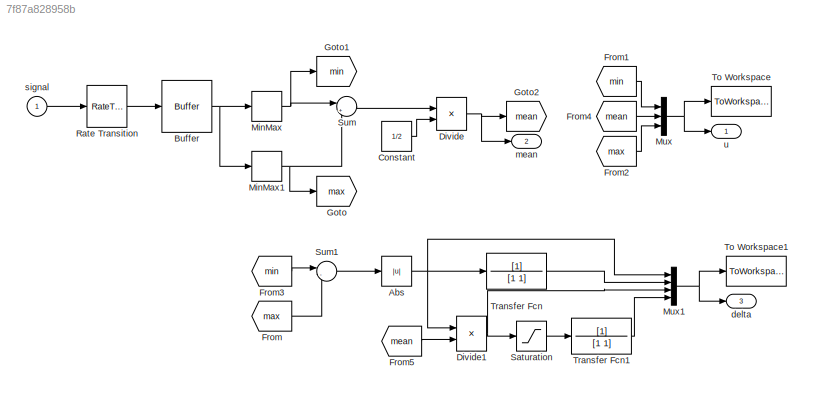
MODEL slx_7f87a828958b
KIND model
CONFIG AbsTol = auto
CONFIG EnableMultiTasking = off
CONFIG FixedStep = auto
CONFIG MaxStep = auto
CONFIG MinStep = auto
CONFIG RelTol = 1e-3
CONFIG SampleTimeConstraint = Unconstrained
CONFIG Solver = VariableStepAuto
CONFIG SolverName = VariableStepAuto
CONFIG StartTime = 0.0
CONFIG StopTime = 10.0
WORKSPACE source: MATLAB code (in-file)
WORKSPACE N = 10
WORKSPACE simulation_step = 0.1
BLOCK [Abs] Abs
  SaturateOnIntegerOverflow = off
BLOCK [Buffer] Buffer
  N = N
  OutputFrames = off
  V = N - 1
BLOCK [Constant] Constant
  Value = 1/2
BLOCK [Product] Divide
  InputSameDT = off
  OutDataTypeStr = Inherit: Inherit via internal rule
  Ports = [2, 1]
BLOCK [Product] Divide1
  InputSameDT = off
  Inputs = */
  OutDataTypeStr = Inherit: Inherit via internal rule
  Ports = [2, 1]
BLOCK [From] From
  GotoTag = max
BLOCK [From] From1
  GotoTag = min
BLOCK [From] From2
  GotoTag = max
BLOCK [From] From3
  GotoTag = min
BLOCK [From] From4
  GotoTag = mean
BLOCK [From] From5
  GotoTag = mean
BLOCK [Goto] Goto
  GotoTag = max
BLOCK [Goto] Goto1
  GotoTag = min
BLOCK [Goto] Goto2
  GotoTag = mean
BLOCK [MinMax] MinMax
  InputSameDT = off
  Ports = [1, 1]
  SaturateOnIntegerOverflow = off
BLOCK [MinMax] MinMax1
  Function = max
  InputSameDT = off
  Ports = [1, 1]
  SaturateOnIntegerOverflow = off
BLOCK [Mux] Mux
  DisplayOption = bar
  Inputs = 3
  Ports = [3, 1]
BLOCK [Mux] Mux1
  DisplayOption = bar
  Ports = [4, 1]
BLOCK [RateTransition] Rate Transition
  OutPortSampleTime = simulation_step
BLOCK [Saturate] Saturation
  InputPortMap = u0
  LowerLimit = -800
  Ports = [1, 1]
  UpperLimit = 800
BLOCK [Sum] Sum
  IconShape = round
  InputSameDT = off
  Inputs = |++
  OutDataTypeStr = Inherit: Inherit via internal rule
  Ports = [2, 1]
  SaturateOnIntegerOverflow = off
BLOCK [Sum] Sum1
  IconShape = round
  InputSameDT = off
  Inputs = |-+
  OutDataTypeStr = Inherit: Inherit via internal rule
  Ports = [2, 1]
  SaturateOnIntegerOverflow = off
BLOCK [ToWorkspace] To Workspace
  FixptAsFi = on
  MaxDataPoints = inf
  Ports = [1]
  SampleTime = -1
  Save2DSignal = 3-D array (concatenate along third dimension)
  SaveFormat = Timeseries
  VariableName = u1
BLOCK [ToWorkspace] To Workspace1
  FixptAsFi = on
  MaxDataPoints = inf
  Ports = [1]
  SampleTime = -1
  Save2DSignal = 3-D array (concatenate along third dimension)
  SaveFormat = Timeseries
  VariableName = delta1
BLOCK [TransferFcn] Transfer Fcn
  Denominator = [1 1]
BLOCK [TransferFcn] Transfer Fcn1
  Denominator = [1 1]
BLOCK [Outport] delta
  IconDisplay = Port number
  Port = 3
BLOCK [Outport] mean
  IconDisplay = Port number
  Port = 2
BLOCK [Inport] signal
  IconDisplay = Port number
BLOCK [Outport] u
  IconDisplay = Port number
NET Abs:1 -> Divide1:1, Mux1:1, Transfer Fcn:1
NET Buffer:1 -> MinMax1:1, MinMax:1
LINE Constant:1 -> Divide:2
NET Divide1:1 -> Mux1:3, Saturation:1
NET Divide:1 -> Goto2:1, mean:1
LINE From1:1 -> Mux:1
LINE From2:1 -> Mux:3
LINE From3:1 -> Sum1:1
LINE From4:1 -> Mux:2
LINE From5:1 -> Divide1:2
LINE From:1 -> Sum1:2
NET MinMax1:1 -> Goto:1, Sum:2
NET MinMax:1 -> Goto1:1, Sum:1
NET Mux1:1 -> To Workspace1:1, delta:1
NET Mux:1 -> To Workspace:1, u:1
LINE Rate Transition:1 -> Buffer:1
LINE Saturation:1 -> Transfer Fcn1:1
LINE Sum1:1 -> Abs:1
LINE Sum:1 -> Divide:1
LINE Transfer Fcn1:1 -> Mux1:4
LINE Transfer Fcn:1 -> Mux1:2
LINE signal:1 -> Rate Transition:1
note: NET lines group one-source signal fan-out (src -> all destinations, sorted); 1:1 wires keep LINE
